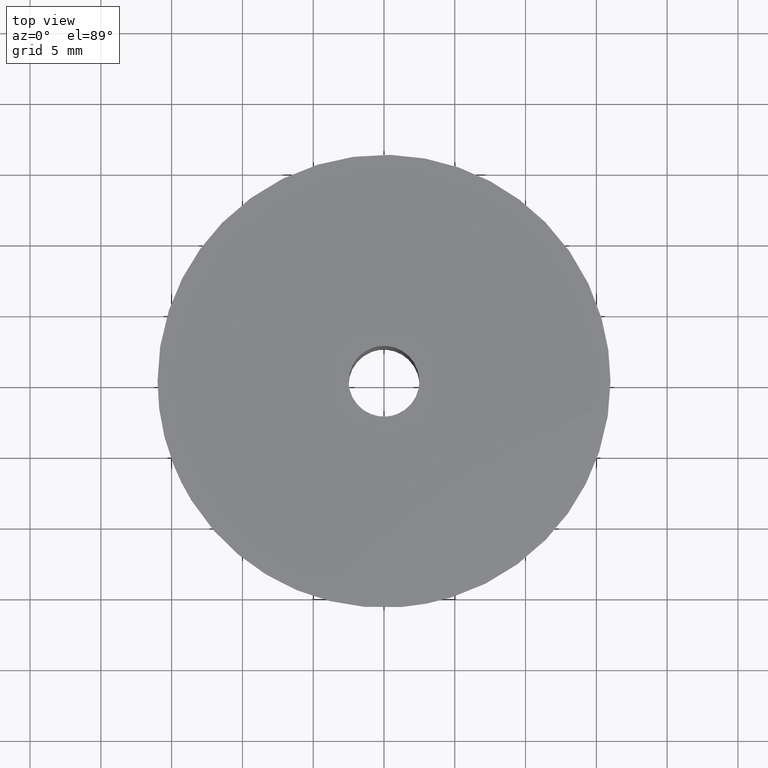
[diagram: clean part render]
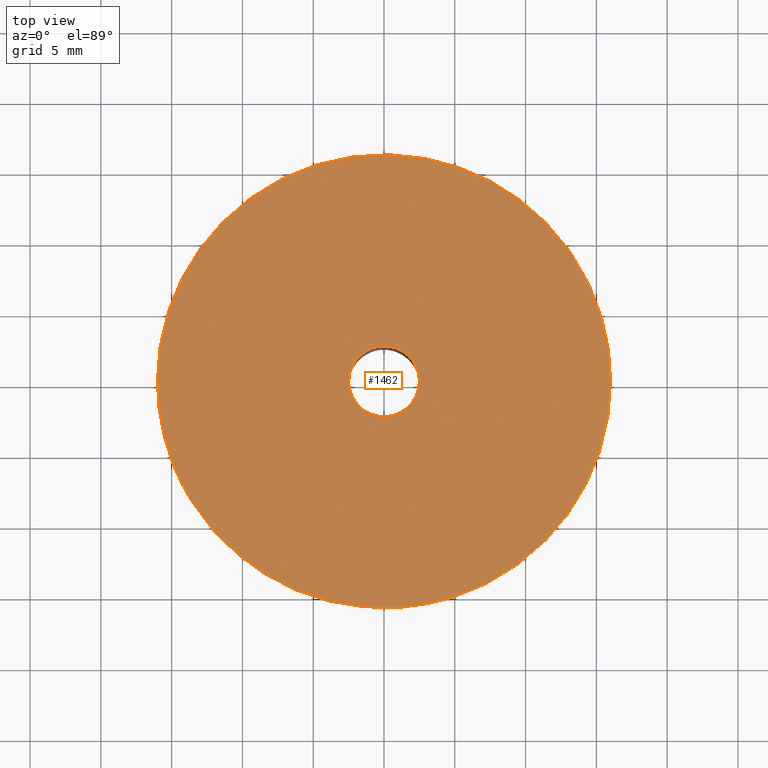
[diagram: same view with one face highlighted and labeled with its STEP entity id]
A machine part, top view. The second image highlights one B-rep face of the part: STEP entity #1462.
In plain terms, the highlighted face is a freeform B-spline surface patch.
Its self-contained STEP definition (entity closure, byte-faithful):
#716=CARTESIAN_POINT('',(1.255336345795552,-15.950677903483150,24.999998016338608));
#717=VERTEX_POINT('',#716);
#723=CARTESIAN_POINT('',(-14.877832634893030,-5.886432751175867,24.999997830483199));
#724=VERTEX_POINT('',#723);
#725=CARTESIAN_POINT('',(1.255336345795552,-15.950677903483154,24.999998016338612));
#726=CARTESIAN_POINT('',(0.628637096309448,-15.999999844302478,24.999998011396638));
#727=CARTESIAN_POINT('',(-2.952334E-009,-15.999999846949040,24.999998006183429));
#728=CARTESIAN_POINT('',(-10.876387439217838,-15.999999892738693,24.999997915986988));
#729=CARTESIAN_POINT('',(-14.877832634893027,-5.886432751175867,24.999997830483203));
#737=(BOUNDED_CURVE()B_SPLINE_CURVE(2,(#725,#726,#727,#728,#729),.UNSPECIFIED.,.F.,.U.)B_SPLINE_CURVE_WITH_KNOTS((3,2,3),(0.736331399220766,0.750000000000000,0.937532605542525),.UNSPECIFIED.)CURVE()GEOMETRIC_REPRESENTATION_ITEM()RATIONAL_B_SPLINE_CURVE((0.969723561917540,0.983986238084377,1.0,0.780291886120705,0.890203252678355))REPRESENTATION_ITEM(''));
#738=EDGE_CURVE('',#717,#724,#737,.T.);
#790=CARTESIAN_POINT('',(-16.0,0.0,25.0));
#791=VERTEX_POINT('',#790);
#792=CARTESIAN_POINT('',(-14.877832634893027,-5.886432751175867,24.999997830483203));
#793=CARTESIAN_POINT('',(-15.999999919305242,-3.050179223264018,24.999998915241594));
#794=CARTESIAN_POINT('',(-16.0,0.0,25.0));
#802=(BOUNDED_CURVE()B_SPLINE_CURVE(2,(#792,#793,#794),.UNSPECIFIED.,.F.,.U.)B_SPLINE_CURVE_WITH_KNOTS((3,3),(0.937532605542525,1.0),.UNSPECIFIED.)CURVE()GEOMETRIC_REPRESENTATION_ITEM()RATIONAL_B_SPLINE_CURVE((0.890203252678355,0.926814895065843,1.0))REPRESENTATION_ITEM(''));
#803=EDGE_CURVE('',#724,#791,#802,.T.);
#805=CARTESIAN_POINT('',(16.0,0.0,25.0));
#806=VERTEX_POINT('',#805);
#807=CARTESIAN_POINT('',(-16.0,0.0,25.0));
#808=CARTESIAN_POINT('',(-15.999999999999998,15.999999999999998,25.0));
#809=CARTESIAN_POINT('',(0.0,16.0,25.0));
#810=CARTESIAN_POINT('',(15.999999999999998,15.999999999999998,25.0));
#811=CARTESIAN_POINT('',(16.0,0.0,25.0));
#819=(BOUNDED_CURVE()B_SPLINE_CURVE(2,(#807,#808,#809,#810,#811),.UNSPECIFIED.,.F.,.U.)B_SPLINE_CURVE_WITH_KNOTS((3,2,3),(0.0,0.250000000000000,0.500000000000000),.UNSPECIFIED.)CURVE()GEOMETRIC_REPRESENTATION_ITEM()RATIONAL_B_SPLINE_CURVE((1.0,0.707106781186548,1.0,0.707106781186548,1.0))REPRESENTATION_ITEM(''));
#820=EDGE_CURVE('',#791,#806,#819,.T.);
#822=CARTESIAN_POINT('',(16.0,0.0,25.0));
#823=CARTESIAN_POINT('',(15.999999993774493,-14.790256319756509,24.999999008169304));
#824=CARTESIAN_POINT('',(1.255336345795552,-15.950677903483154,24.999998016338612));
#832=(BOUNDED_CURVE()B_SPLINE_CURVE(2,(#822,#823,#824),.UNSPECIFIED.,.F.,.U.)B_SPLINE_CURVE_WITH_KNOTS((3,3),(0.500000000000000,0.736331399220766),.UNSPECIFIED.)CURVE()GEOMETRIC_REPRESENTATION_ITEM()RATIONAL_B_SPLINE_CURVE((1.0,0.723120543102171,0.969723561917540))REPRESENTATION_ITEM(''));
#833=EDGE_CURVE('',#806,#717,#832,.T.);
#921=CARTESIAN_POINT('',(-0.295085586690287,2.482523815903414,25.0));
#922=VERTEX_POINT('',#921);
#923=CARTESIAN_POINT('',(2.500000000000000,0.0,25.0));
#924=VERTEX_POINT('',#923);
#925=CARTESIAN_POINT('',(-0.295085586690287,2.482523815903414,24.999999999999993));
#926=CARTESIAN_POINT('',(-0.148060299178678,2.500000000000000,25.000000000000004));
#927=CARTESIAN_POINT('',(0.0,2.500000000000000,25.0));
#928=CARTESIAN_POINT('',(2.500000000000000,2.500000000000000,25.0));
#929=CARTESIAN_POINT('',(2.500000000000000,0.0,25.0));
#937=(BOUNDED_CURVE()B_SPLINE_CURVE(2,(#925,#926,#927,#928,#929),.UNSPECIFIED.,.F.,.U.)B_SPLINE_CURVE_WITH_KNOTS((3,2,3),(0.229562473509056,0.250000000000000,0.500000000000000),.UNSPECIFIED.)CURVE()GEOMETRIC_REPRESENTATION_ITEM()RATIONAL_B_SPLINE_CURVE((0.956026754174972,0.976055948325928,1.0,0.707106781186548,1.0))REPRESENTATION_ITEM(''));
#938=EDGE_CURVE('',#922,#924,#937,.T.);
#979=CARTESIAN_POINT('',(0.152621348895174,-2.495336996051118,25.0));
#980=VERTEX_POINT('',#979);
#986=CARTESIAN_POINT('',(2.500000000000000,0.0,25.0));
#987=CARTESIAN_POINT('',(2.500000000000000,-2.351765167154643,25.000000000000004));
#988=CARTESIAN_POINT('',(0.152621348895174,-2.495336996051119,25.000000000000004));
#996=(BOUNDED_CURVE()B_SPLINE_CURVE(2,(#986,#987,#988),.UNSPECIFIED.,.F.,.U.)B_SPLINE_CURVE_WITH_KNOTS((3,3),(0.500000000000000,0.739332962233942),.UNSPECIFIED.)CURVE()GEOMETRIC_REPRESENTATION_ITEM()RATIONAL_B_SPLINE_CURVE((1.0,0.719603993292569,0.976072041656001))REPRESENTATION_ITEM(''));
#997=EDGE_CURVE('',#924,#980,#996,.T.);
#1020=CARTESIAN_POINT('',(-2.500000000000000,0.0,25.0));
#1021=VERTEX_POINT('',#1020);
#1022=CARTESIAN_POINT('',(-2.500000000000000,0.0,25.0));
#1023=CARTESIAN_POINT('',(-2.500000000000000,2.220436314791246,25.000000000000004));
#1024=CARTESIAN_POINT('',(-0.295085586690287,2.482523815903414,24.999999999999993));
#1032=(BOUNDED_CURVE()B_SPLINE_CURVE(2,(#1022,#1023,#1024),.UNSPECIFIED.,.F.,.U.)B_SPLINE_CURVE_WITH_KNOTS((3,3),(0.0,0.229562473509056),.UNSPECIFIED.)CURVE()GEOMETRIC_REPRESENTATION_ITEM()RATIONAL_B_SPLINE_CURVE((1.0,0.731050832860619,0.956026754174972))REPRESENTATION_ITEM(''));
#1033=EDGE_CURVE('',#1021,#922,#1032,.T.);
#1035=CARTESIAN_POINT('',(0.152621348895174,-2.495336996051118,25.0));
#1036=CARTESIAN_POINT('',(0.076381908304666,-2.500000000000000,25.0));
#1037=CARTESIAN_POINT('',(0.0,-2.500000000000000,25.0));
#1038=CARTESIAN_POINT('',(-2.500000000000000,-2.500000000000000,25.0));
#1039=CARTESIAN_POINT('',(-2.500000000000000,0.0,25.0));
#1047=(BOUNDED_CURVE()B_SPLINE_CURVE(2,(#1035,#1036,#1037,#1038,#1039),.UNSPECIFIED.,.F.,.U.)B_SPLINE_CURVE_WITH_KNOTS((3,2,3),(0.739332962233943,0.750000000000000,1.0),.UNSPECIFIED.)CURVE()GEOMETRIC_REPRESENTATION_ITEM()RATIONAL_B_SPLINE_CURVE((0.976072041656002,0.987502787893979,1.0,0.707106781186548,1.0))REPRESENTATION_ITEM(''));
#1048=EDGE_CURVE('',#980,#1021,#1047,.T.);
#1445=CARTESIAN_POINT('',(17.598399937977788,-17.598066501631742,25.0));
#1446=CARTESIAN_POINT('',(-17.598400796284679,-17.598066501631742,25.0));
#1447=CARTESIAN_POINT('',(17.598399937977788,17.598384933485988,25.0));
#1448=CARTESIAN_POINT('',(-17.598400796284679,17.598384933485988,25.0));
#1449=B_SPLINE_SURFACE_WITH_KNOTS('',1,1,((#1445,#1447),(#1446,#1448)),.UNSPECIFIED.,.F.,.F.,.U.,(2,2),(2,2),(0.0,35.196800734262467),(0.0,35.196451435117723),.UNSPECIFIED.);
#1450=ORIENTED_EDGE('',*,*,#803,.F.);
#1451=ORIENTED_EDGE('',*,*,#738,.F.);
#1452=ORIENTED_EDGE('',*,*,#833,.F.);
#1453=ORIENTED_EDGE('',*,*,#820,.F.);
#1454=EDGE_LOOP('',(#1450,#1451,#1452,#1453));
#1455=FACE_OUTER_BOUND('',#1454,.T.);
#1456=ORIENTED_EDGE('',*,*,#997,.T.);
#1457=ORIENTED_EDGE('',*,*,#1048,.T.);
#1458=ORIENTED_EDGE('',*,*,#1033,.T.);
#1459=ORIENTED_EDGE('',*,*,#938,.T.);
#1460=EDGE_LOOP('',(#1456,#1457,#1458,#1459));
#1461=FACE_BOUND('',#1460,.T.);
#1462=ADVANCED_FACE('',(#1455,#1461),#1449,.F.);